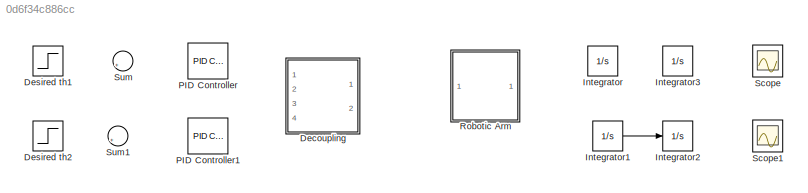
MODEL slx_0d6f34c886cc
KIND model
CONFIG AbsTol = auto
CONFIG EnableMultiTasking = off
CONFIG FixedStep = auto
CONFIG MaxStep = auto
CONFIG MinStep = auto
CONFIG RelTol = 1e-3
CONFIG SampleTimeConstraint = Unconstrained
CONFIG Solver = VariableStepAuto
CONFIG SolverName = VariableStepAuto
CONFIG StartTime = 0.0
CONFIG StopTime = 10.0
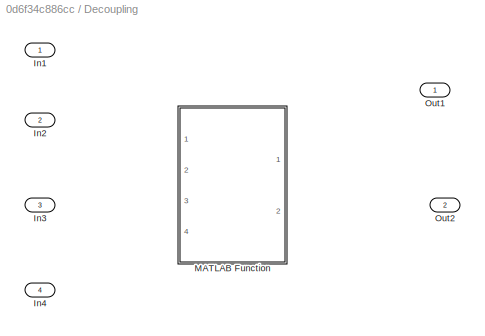
BLOCK [SubSystem] Decoupling
  Ports = [4, 2]
  RequestExecContextInheritance = off
BLOCK [Inport] Decoupling/In1
BLOCK [Inport] Decoupling/In2
  Port = 2
BLOCK [Inport] Decoupling/In3
  Port = 3
BLOCK [Inport] Decoupling/In4
  Port = 4
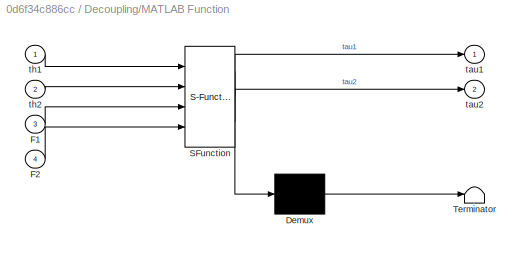
BLOCK [SubSystem] Decoupling/MATLAB Function
  ErrorFcn = Stateflow.Translate.translate
  PermitHierarchicalResolution = ExplicitOnly
  Ports = [4, 2]
  RequestExecContextInheritance = off
  SFBlockType = MATLAB Function
  TreatAsAtomicUnit = on
BLOCK [Demux] Decoupling/MATLAB Function/ Demux 
  Outputs = 1
  Ports = [1, 1]
BLOCK [S-Function] Decoupling/MATLAB Function/ SFunction 
  EnableBusSupport = off
  FunctionName = sf_sfun
  PortCounts = [4 3]
  Ports = [4, 3]
  SFcnIsStateOwnerBlock = off
  SFunctionDeploymentMode = off
  Tag = Stateflow S-Function 2
BLOCK [Terminator] Decoupling/MATLAB Function/ Terminator 
BLOCK [Inport] Decoupling/MATLAB Function/F1
  Port = 3
BLOCK [Inport] Decoupling/MATLAB Function/F2
  Port = 4
BLOCK [Outport] Decoupling/MATLAB Function/tau1
BLOCK [Outport] Decoupling/MATLAB Function/tau2
  Port = 2
BLOCK [Inport] Decoupling/MATLAB Function/th1
BLOCK [Inport] Decoupling/MATLAB Function/th2
  Port = 2
BLOCK [Outport] Decoupling/Out1
BLOCK [Outport] Decoupling/Out2
  Port = 2
BLOCK [Step] Desired th1
  After = 0.25*pi
  SampleTime = 0
BLOCK [Step] Desired th2
  After = 1.75*pi
  SampleTime = 0
BLOCK [Integrator] Integrator
  Ports = [1, 1]
BLOCK [Integrator] Integrator1
  Ports = [1, 1]
BLOCK [Integrator] Integrator2
  Ports = [1, 1]
BLOCK [Integrator] Integrator3
  Ports = [1, 1]
BLOCK [Reference] PID Controller  REF=simulink/Continuous/PID Controller
  Ports = [1, 1]
  SourceBlock = simulink/Continuous/PID Controller
  SourceProductBaseCode = SL
  SourceType = PID 1dof
BLOCK [Reference] PID Controller1  REF=simulink/Continuous/PID Controller
  Ports = [1, 1]
  SourceBlock = simulink/Continuous/PID Controller
  SourceProductBaseCode = SL
  SourceType = PID 1dof
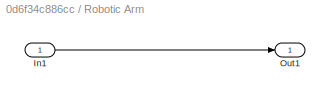
BLOCK [SubSystem] Robotic Arm
  Ports = [1, 1]
  RequestExecContextInheritance = off
BLOCK [Inport] Robotic Arm/In1
BLOCK [Outport] Robotic Arm/Out1
BLOCK [Scope] Scope
  Floating = off
  NumInputPorts = 1
  Ports = [1]
  ScopeSpecificationString = Simulink.scopes.TimeScopeBlockCfg('CurrentConfiguration', extmgr.ConfigurationSet(extmgr.Configuration('Core','General UI',true),extmgr.Configuration('Core','Source UI',true),extmgr.Configuration('Sources','WiredSimulink',true),extmgr.Configuration('Visuals','Time Domain',true),extmgr.Configuration('Tools','Plot Navigation',true),extmgr.Configuration('Tools','Measurements',true)),'Version','2020a'...<+1ch>
BLOCK [Scope] Scope1
  Floating = off
  NumInputPorts = 1
  Ports = [1]
  ScopeSpecificationString = Simulink.scopes.TimeScopeBlockCfg('CurrentConfiguration', extmgr.ConfigurationSet(extmgr.Configuration('Core','General UI',true),extmgr.Configuration('Core','Source UI',true),extmgr.Configuration('Sources','WiredSimulink',true,'DataLoggingVariableName','ScopeData1'),extmgr.Configuration('Visuals','Time Domain',true),extmgr.Configuration('Tools','Plot Navigation',true),extmgr.Configuration('Tools',...<+40ch>
BLOCK [Sum] Sum
  Inputs = |+-
  Ports = [2, 1]
BLOCK [Sum] Sum1
  Inputs = |+-
  Ports = [2, 1]
LINE Integrator1:1 -> Integrator2:1
LINE Robotic Arm/In1:1 -> Robotic Arm/Out1:1
CHART Decoupling/MATLAB Function states=1 transitions=1
  STATE_LABEL 'eML_blk_kernel()'
  STATE_LABEL 'SCRIPT:\nfunction [tau1,tau2] = fcn(th1, th2, F1, F2)\n   l1 = 0.2;\n   l2 = 0.2;\n   J = [l2*cos(th1+th2)+l1*cos(th1), l2*cos(th1+th2);\n         l2*sin(th1+th2)+l1*sin(th1), l2*sin(th1+th2)];\n   tau1 = J(1,1)*F1 + J(1,2)*F2;\n   tau2 = J(2,1)*F1 + J(2,2)*F2;\n   '
CHART  states=0 transitions=0
